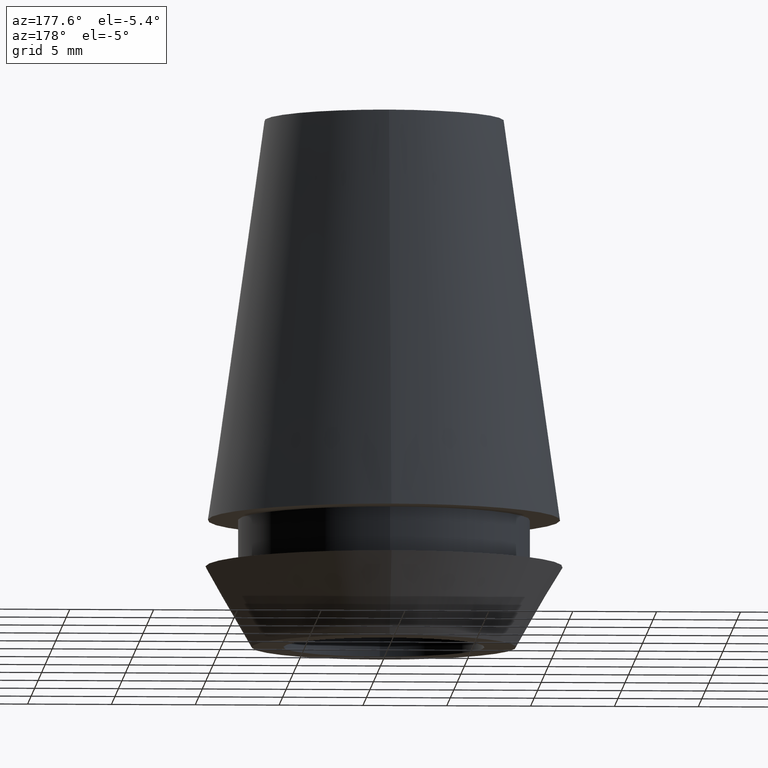
[diagram: clean part render]
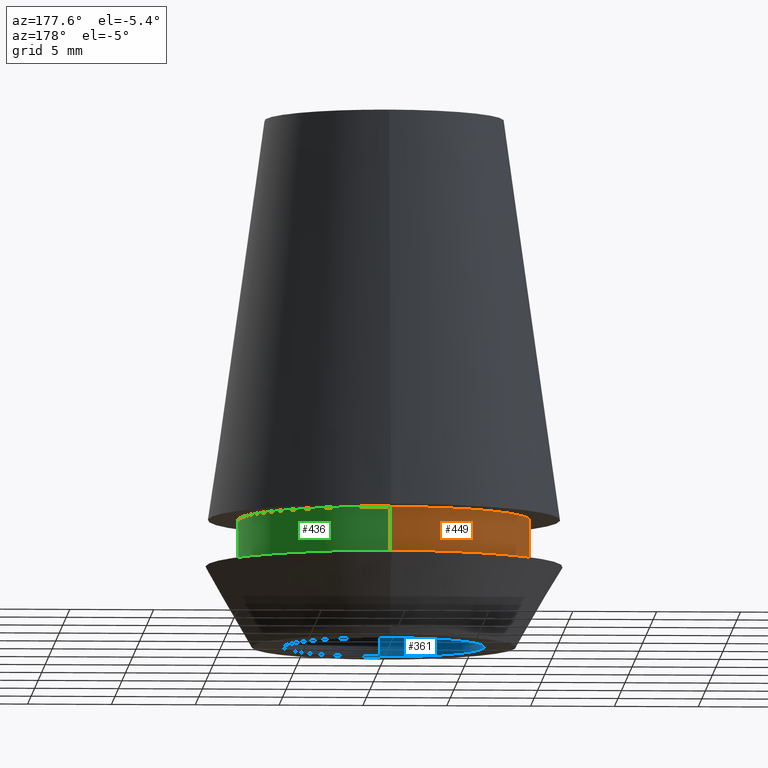
[diagram: same view with three faces highlighted in distinct colors, each labeled with its STEP entity id]
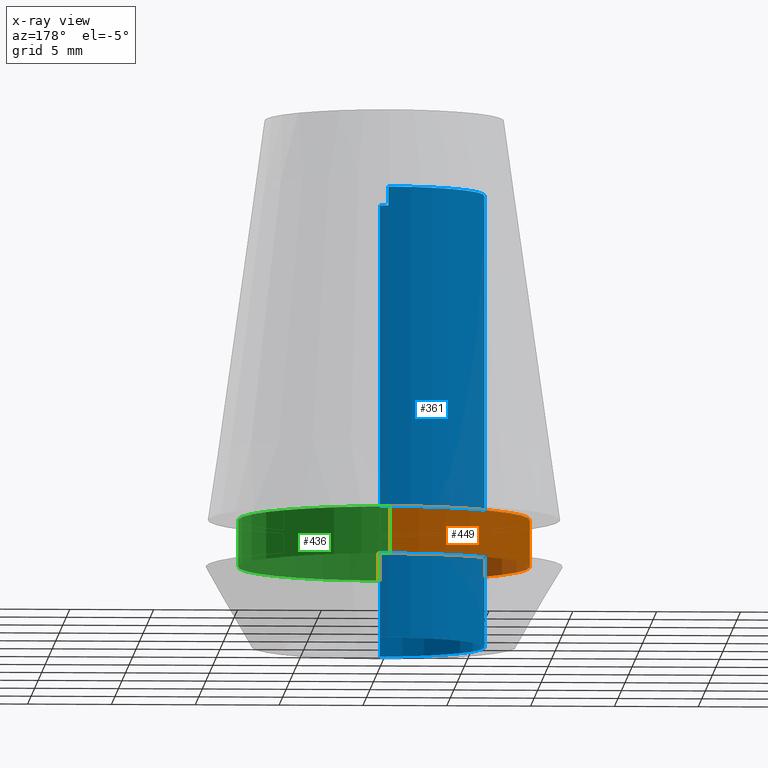
[diagram: x-ray of the same camera — body ghosted, the three highlighted faces saturated]
A machine part, auxiliary view with three faces highlighted in distinct colors.
The next image is the same camera in x-ray (body ghosted, the three faces saturated) — at least one of them is partly hidden behind the body in this view.
Their STEP definitions:

[orange] entity #449 — the highlighted cylindrical surface (partial cylindrical patch) has radius 8.7 mm, axis along (0, 0, -1).
#148=CARTESIAN_POINT('',(0.E0,1.493028145180E-14,-2.67E1));
#149=DIRECTION('',(0.E0,0.E0,1.E0));
#150=DIRECTION('',(0.E0,1.E0,0.E0));
#151=AXIS2_PLACEMENT_3D('',#148,#149,#150);
#156=DIRECTION('',(0.E0,0.E0,-1.E0));
#157=VECTOR('',#156,2.8E0);
#158=CARTESIAN_POINT('',(0.E0,8.7E0,-2.39E1));
#159=LINE('',#158,#157);
#163=DIRECTION('',(0.E0,0.E0,-1.E0));
#164=VECTOR('',#163,2.8E0);
#165=CARTESIAN_POINT('',(0.E0,-8.7E0,-2.39E1));
#166=LINE('',#165,#164);
#186=CARTESIAN_POINT('',(0.E0,1.493028145180E-14,-2.39E1));
#187=DIRECTION('',(0.E0,0.E0,-1.E0));
#188=DIRECTION('',(0.E0,-1.E0,0.E0));
#189=AXIS2_PLACEMENT_3D('',#186,#187,#188);
#272=CARTESIAN_POINT('',(0.E0,-8.7E0,-2.67E1));
#273=CARTESIAN_POINT('',(0.E0,8.7E0,-2.67E1));
#274=VERTEX_POINT('',#272);
#275=VERTEX_POINT('',#273);
#276=CARTESIAN_POINT('',(0.E0,8.7E0,-2.39E1));
#277=VERTEX_POINT('',#276);
#278=CARTESIAN_POINT('',(0.E0,-8.7E0,-2.39E1));
#279=VERTEX_POINT('',#278);
#437=CARTESIAN_POINT('',(0.E0,1.493028145180E-14,1.575E0));
#438=DIRECTION('',(0.E0,0.E0,-1.E0));
#439=DIRECTION('',(0.E0,-1.E0,0.E0));
#440=AXIS2_PLACEMENT_3D('',#437,#438,#439);
#441=CYLINDRICAL_SURFACE('',#440,8.7E0);
#442=ORIENTED_EDGE('',*,*,#427,.F.);
#444=ORIENTED_EDGE('',*,*,#443,.F.);
#445=ORIENTED_EDGE('',*,*,#430,.T.);
#446=ORIENTED_EDGE('',*,*,#417,.F.);
#447=EDGE_LOOP('',(#442,#444,#445,#446));
#448=FACE_OUTER_BOUND('',#447,.F.);
#152=CIRCLE('',#151,8.7E0);
#190=CIRCLE('',#189,8.7E0);
#417=EDGE_CURVE('',#275,#274,#152,.T.);
#427=EDGE_CURVE('',#277,#275,#159,.T.);
#430=EDGE_CURVE('',#279,#274,#166,.T.);
#443=EDGE_CURVE('',#279,#277,#190,.T.);
#449=ADVANCED_FACE('',(#448),#441,.T.);

[blue] entity #361 — the highlighted cylindrical surface (partial cylindrical patch) has radius 6 mm, axis along (0, 0, -1).
#56=CARTESIAN_POINT('',(0.E0,1.493028145180E-14,-4.5E0));
#57=DIRECTION('',(0.E0,0.E0,1.E0));
#58=DIRECTION('',(0.E0,1.E0,0.E0));
#59=AXIS2_PLACEMENT_3D('',#56,#57,#58);
#64=DIRECTION('',(0.E0,0.E0,1.E0));
#65=VECTOR('',#64,2.7E1);
#66=CARTESIAN_POINT('',(0.E0,6.E0,-3.15E1));
#67=LINE('',#66,#65);
#71=DIRECTION('',(0.E0,0.E0,1.E0));
#72=VECTOR('',#71,2.7E1);
#73=CARTESIAN_POINT('',(0.E0,-6.E0,-3.15E1));
#74=LINE('',#73,#72);
#94=CARTESIAN_POINT('',(0.E0,1.493028145180E-14,-3.15E1));
#95=DIRECTION('',(0.E0,0.E0,-1.E0));
#96=DIRECTION('',(0.E0,-1.E0,0.E0));
#97=AXIS2_PLACEMENT_3D('',#94,#95,#96);
#256=CARTESIAN_POINT('',(0.E0,-6.E0,-4.5E0));
#257=CARTESIAN_POINT('',(0.E0,6.E0,-4.5E0));
#258=VERTEX_POINT('',#256);
#259=VERTEX_POINT('',#257);
#260=CARTESIAN_POINT('',(0.E0,6.E0,-3.15E1));
#261=VERTEX_POINT('',#260);
#262=CARTESIAN_POINT('',(0.E0,-6.E0,-3.15E1));
#263=VERTEX_POINT('',#262);
#349=CARTESIAN_POINT('',(0.E0,1.493028145180E-14,1.575E0));
#350=DIRECTION('',(0.E0,0.E0,-1.E0));
#351=DIRECTION('',(0.E0,-1.E0,0.E0));
#352=AXIS2_PLACEMENT_3D('',#349,#350,#351);
#353=CYLINDRICAL_SURFACE('',#352,6.E0);
#354=ORIENTED_EDGE('',*,*,#339,.F.);
#356=ORIENTED_EDGE('',*,*,#355,.F.);
#357=ORIENTED_EDGE('',*,*,#342,.T.);
#358=ORIENTED_EDGE('',*,*,#329,.F.);
#359=EDGE_LOOP('',(#354,#356,#357,#358));
#360=FACE_OUTER_BOUND('',#359,.F.);
#60=CIRCLE('',#59,6.E0);
#98=CIRCLE('',#97,6.E0);
#329=EDGE_CURVE('',#259,#258,#60,.T.);
#339=EDGE_CURVE('',#261,#259,#67,.T.);
#342=EDGE_CURVE('',#263,#258,#74,.T.);
#355=EDGE_CURVE('',#263,#261,#98,.T.);
#361=ADVANCED_FACE('',(#360),#353,.F.);

[green] entity #436 — the highlighted cylindrical surface (partial cylindrical patch) has radius 8.7 mm, axis along (0, 0, -1).
#140=CARTESIAN_POINT('',(0.E0,1.493028145180E-14,-2.67E1));
#141=DIRECTION('',(0.E0,0.E0,1.E0));
#142=DIRECTION('',(0.E0,-1.E0,0.E0));
#143=AXIS2_PLACEMENT_3D('',#140,#141,#142);
#156=DIRECTION('',(0.E0,0.E0,-1.E0));
#157=VECTOR('',#156,2.8E0);
#158=CARTESIAN_POINT('',(0.E0,8.7E0,-2.39E1));
#159=LINE('',#158,#157);
#163=DIRECTION('',(0.E0,0.E0,-1.E0));
#164=VECTOR('',#163,2.8E0);
#165=CARTESIAN_POINT('',(0.E0,-8.7E0,-2.39E1));
#166=LINE('',#165,#164);
#194=CARTESIAN_POINT('',(0.E0,1.493028145180E-14,-2.39E1));
#195=DIRECTION('',(0.E0,0.E0,-1.E0));
#196=DIRECTION('',(0.E0,1.E0,0.E0));
#197=AXIS2_PLACEMENT_3D('',#194,#195,#196);
#272=CARTESIAN_POINT('',(0.E0,-8.7E0,-2.67E1));
#273=CARTESIAN_POINT('',(0.E0,8.7E0,-2.67E1));
#274=VERTEX_POINT('',#272);
#275=VERTEX_POINT('',#273);
#276=CARTESIAN_POINT('',(0.E0,8.7E0,-2.39E1));
#277=VERTEX_POINT('',#276);
#278=CARTESIAN_POINT('',(0.E0,-8.7E0,-2.39E1));
#279=VERTEX_POINT('',#278);
#422=CARTESIAN_POINT('',(0.E0,1.493028145180E-14,1.575E0));
#423=DIRECTION('',(0.E0,0.E0,-1.E0));
#424=DIRECTION('',(0.E0,-1.E0,0.E0));
#425=AXIS2_PLACEMENT_3D('',#422,#423,#424);
#426=CYLINDRICAL_SURFACE('',#425,8.7E0);
#428=ORIENTED_EDGE('',*,*,#427,.T.);
#429=ORIENTED_EDGE('',*,*,#415,.F.);
#431=ORIENTED_EDGE('',*,*,#430,.F.);
#433=ORIENTED_EDGE('',*,*,#432,.F.);
#434=EDGE_LOOP('',(#428,#429,#431,#433));
#435=FACE_OUTER_BOUND('',#434,.F.);
#144=CIRCLE('',#143,8.7E0);
#198=CIRCLE('',#197,8.7E0);
#415=EDGE_CURVE('',#274,#275,#144,.T.);
#427=EDGE_CURVE('',#277,#275,#159,.T.);
#430=EDGE_CURVE('',#279,#274,#166,.T.);
#432=EDGE_CURVE('',#277,#279,#198,.T.);
#436=ADVANCED_FACE('',(#435),#426,.T.);